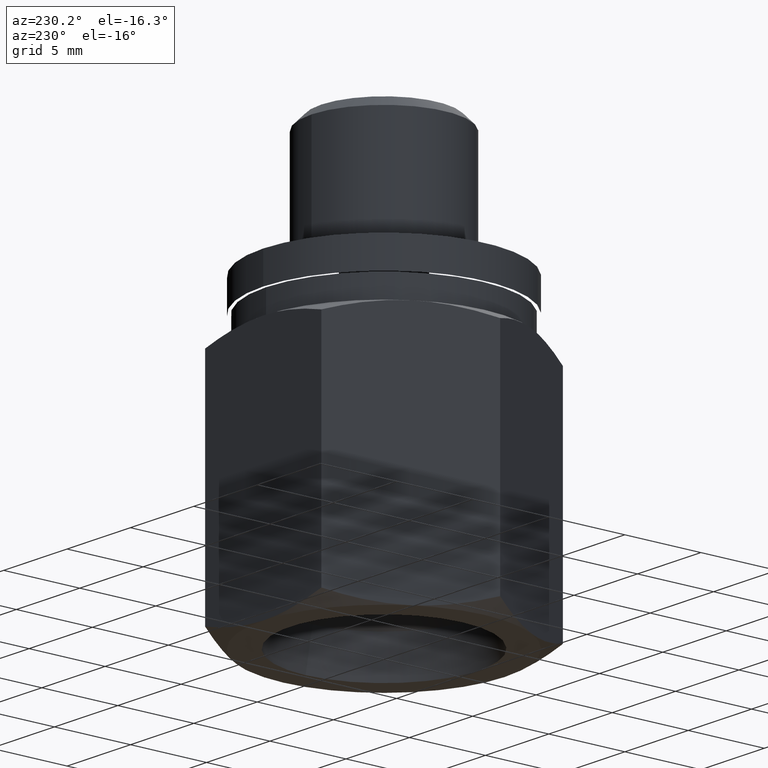
[diagram: clean part render]
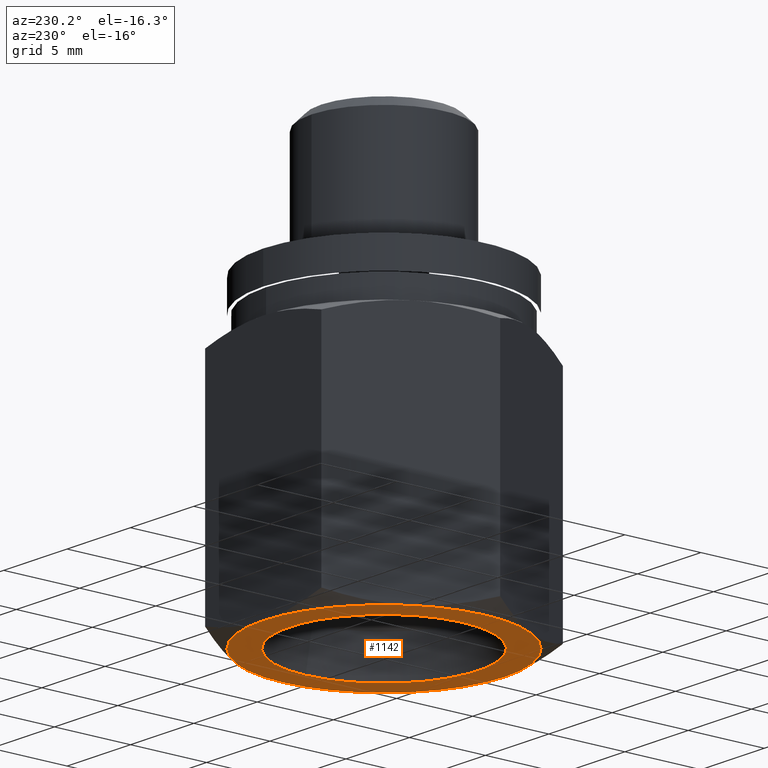
[diagram: same view with one face highlighted and labeled with its STEP entity id]
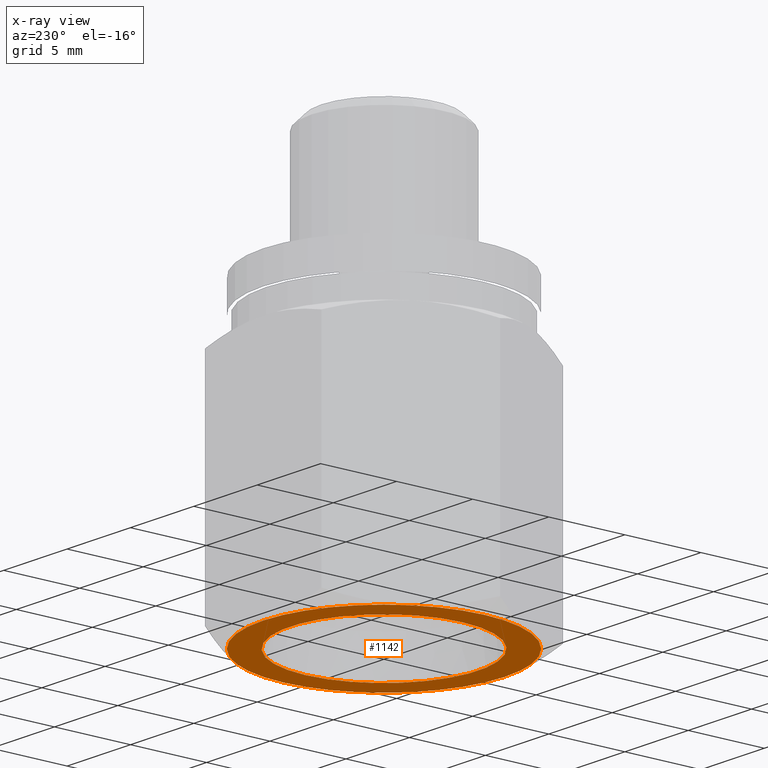
[diagram: x-ray of the same camera — body ghosted, the highlighted face saturated]
A machine part, auxiliary view. The second image highlights one B-rep face of the part: STEP entity #1142.
The next image is the same camera in x-ray: the body ghosted, the highlighted face saturated — about 0% of this face is hidden behind the body in this view.
In plain terms, the highlighted planar face has unit normal (0, 0, -1).
Its self-contained STEP definition (entity closure, byte-faithful):
#157=CARTESIAN_POINT('',(3.577905949636E-11,3.125000000008E-1,
9.999999999728E-3));
#197=CARTESIAN_POINT('',(-2.706329386690E-1,1.562500000251E-1,
9.999999999775E-3));
#237=CARTESIAN_POINT('',(-2.706329387005E-1,-1.562499999707E-1,
9.999999999775E-3));
#277=CARTESIAN_POINT('',(-3.577946565269E-11,-3.125000000008E-1,
9.999999999728E-3));
#317=CARTESIAN_POINT('',(2.706329386690E-1,-1.562500000251E-1,
9.999999999775E-3));
#357=CARTESIAN_POINT('',(2.706329387005E-1,1.562499999707E-1,
9.999999999775E-3));
#475=CARTESIAN_POINT('',(0.E0,0.E0,1.E-2));
#476=DIRECTION('',(0.E0,0.E0,1.E0));
#477=DIRECTION('',(1.E0,0.E0,0.E0));
#478=AXIS2_PLACEMENT_3D('',#475,#476,#477);
#480=CARTESIAN_POINT('',(0.E0,0.E0,1.E-2));
#481=DIRECTION('',(0.E0,0.E0,-1.E0));
#482=DIRECTION('',(1.E0,0.E0,0.E0));
#483=AXIS2_PLACEMENT_3D('',#480,#481,#482);
#485=CARTESIAN_POINT('',(0.E0,0.E0,1.E-2));
#486=DIRECTION('',(0.E0,0.E0,1.E0));
#487=DIRECTION('',(-8.660254037190E-1,5.000000001133E-1,0.E0));
#488=AXIS2_PLACEMENT_3D('',#485,#486,#487);
#490=CARTESIAN_POINT('',(0.E0,0.E0,1.E-2));
#491=DIRECTION('',(0.E0,0.E0,1.E0));
#492=DIRECTION('',(-8.660254038499E-1,-4.999999998866E-1,0.E0));
#493=AXIS2_PLACEMENT_3D('',#490,#491,#492);
#495=CARTESIAN_POINT('',(0.E0,0.E0,1.E-2));
#496=DIRECTION('',(0.E0,0.E0,1.E0));
#497=DIRECTION('',(8.660254037190E-1,-5.000000001134E-1,0.E0));
#498=AXIS2_PLACEMENT_3D('',#495,#496,#497);
#500=CARTESIAN_POINT('',(0.E0,0.E0,1.E-2));
#501=DIRECTION('',(0.E0,0.E0,1.E0));
#502=DIRECTION('',(8.660254038499E-1,4.999999998866E-1,0.E0));
#503=AXIS2_PLACEMENT_3D('',#500,#501,#502);
#557=CARTESIAN_POINT('',(0.E0,0.E0,1.E-2));
#558=DIRECTION('',(0.E0,0.E0,-1.E0));
#559=DIRECTION('',(8.660254037190E-1,-5.000000001134E-1,0.E0));
#560=AXIS2_PLACEMENT_3D('',#557,#558,#559);
#562=CARTESIAN_POINT('',(0.E0,0.E0,1.E-2));
#563=DIRECTION('',(0.E0,0.E0,-1.E0));
#564=DIRECTION('',(-8.660254037190E-1,5.000000001133E-1,0.E0));
#565=AXIS2_PLACEMENT_3D('',#562,#563,#564);
#627=CARTESIAN_POINT('',(2.435E-1,0.E0,1.E-2));
#628=VERTEX_POINT('',#627);
#635=CARTESIAN_POINT('',(-2.435E-1,0.E0,1.E-2));
#636=VERTEX_POINT('',#635);
#642=VERTEX_POINT('',#157);
#644=VERTEX_POINT('',#197);
#646=VERTEX_POINT('',#237);
#648=VERTEX_POINT('',#277);
#650=VERTEX_POINT('',#317);
#652=VERTEX_POINT('',#357);
#1118=CARTESIAN_POINT('',(0.E0,0.E0,1.E-2));
#1119=DIRECTION('',(0.E0,0.E0,-1.E0));
#1120=DIRECTION('',(1.E0,0.E0,0.E0));
#1121=AXIS2_PLACEMENT_3D('',#1118,#1119,#1120);
#1122=PLANE('',#1121);
#1124=ORIENTED_EDGE('',*,*,#1123,.F.);
#1126=ORIENTED_EDGE('',*,*,#1125,.T.);
#1128=ORIENTED_EDGE('',*,*,#1127,.T.);
#1130=ORIENTED_EDGE('',*,*,#1129,.F.);
#1132=ORIENTED_EDGE('',*,*,#1131,.T.);
#1134=ORIENTED_EDGE('',*,*,#1133,.T.);
#1135=EDGE_LOOP('',(#1124,#1126,#1128,#1130,#1132,#1134));
#1136=FACE_OUTER_BOUND('',#1135,.F.);
#1138=ORIENTED_EDGE('',*,*,#1137,.F.);
#1139=ORIENTED_EDGE('',*,*,#1106,.T.);
#1140=EDGE_LOOP('',(#1138,#1139));
#1141=FACE_BOUND('',#1140,.F.);
#479=CIRCLE('',#478,2.435E-1);
#484=CIRCLE('',#483,2.435E-1);
#489=CIRCLE('',#488,3.125E-1);
#494=CIRCLE('',#493,3.125E-1);
#499=CIRCLE('',#498,3.125E-1);
#504=CIRCLE('',#503,3.125E-1);
#561=CIRCLE('',#560,3.125E-1);
#566=CIRCLE('',#565,3.125E-1);
#1106=EDGE_CURVE('',#628,#636,#484,.T.);
#1123=EDGE_CURVE('',#644,#642,#566,.T.);
#1125=EDGE_CURVE('',#644,#646,#489,.T.);
#1127=EDGE_CURVE('',#646,#648,#494,.T.);
#1129=EDGE_CURVE('',#650,#648,#561,.T.);
#1131=EDGE_CURVE('',#650,#652,#499,.T.);
#1133=EDGE_CURVE('',#652,#642,#504,.T.);
#1137=EDGE_CURVE('',#628,#636,#479,.T.);
#1142=ADVANCED_FACE('',(#1136,#1141),#1122,.T.);